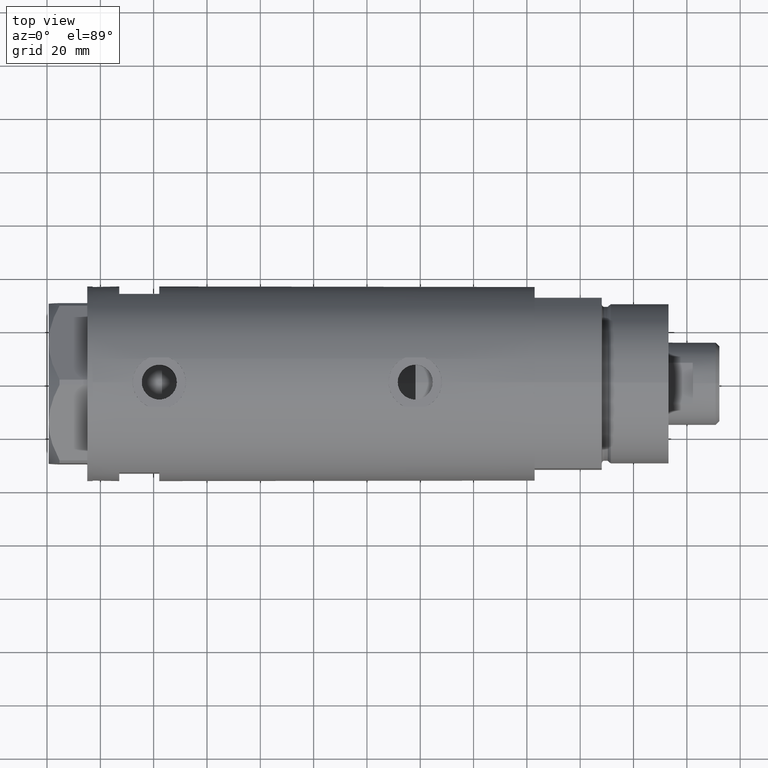
[diagram: clean part render]
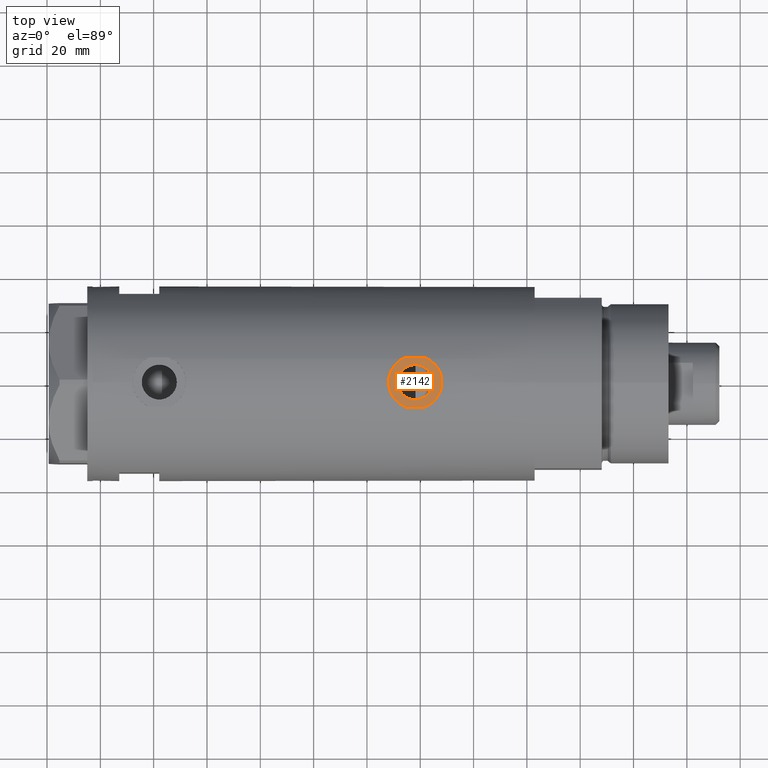
[diagram: same view with one face highlighted and labeled with its STEP entity id]
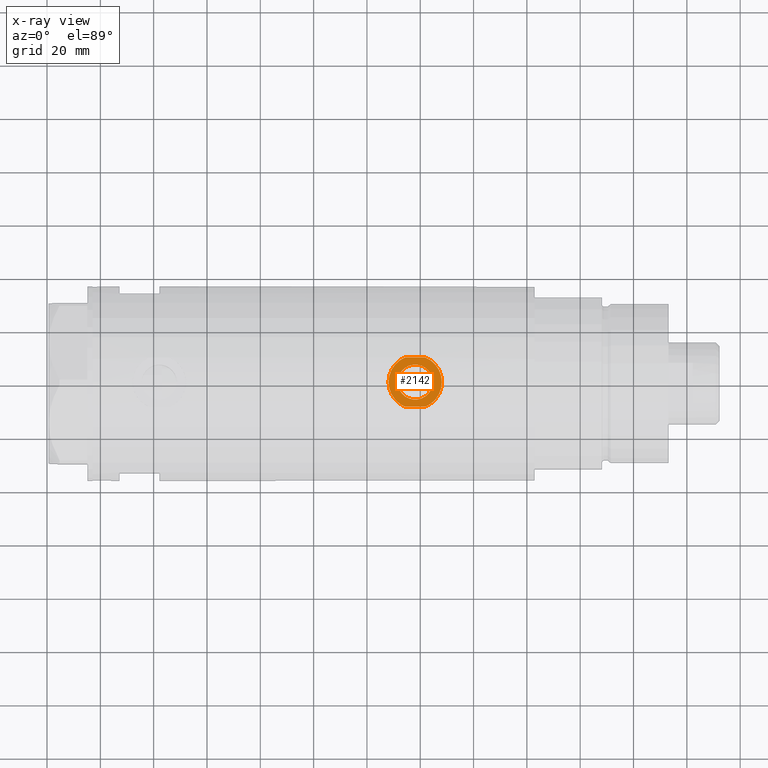
[diagram: x-ray of the same camera — body ghosted, the highlighted face saturated]
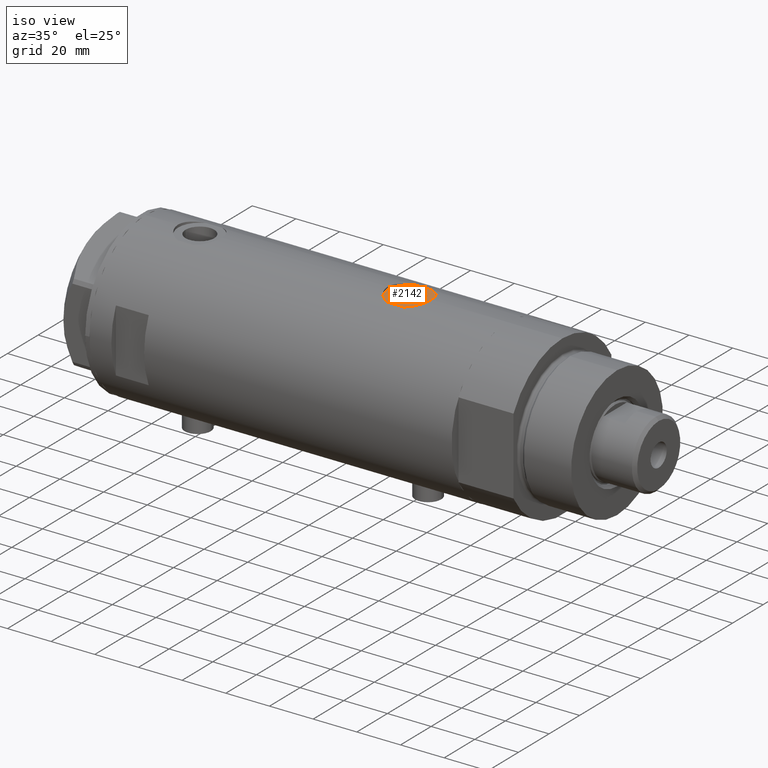
[diagram: same view with one face highlighted and labeled with its STEP entity id]
A machine part, top view. The second image highlights one B-rep face of the part: STEP entity #2142.
The next image is the same camera in x-ray: the body ghosted, the highlighted face saturated — about 0% of this face is hidden behind the body in this view.
A second angle (iso view) of the same face is appended — the face is thin or edge-on in the first view.
In plain terms, the highlighted planar face has unit normal (0, 0, 1).
Its self-contained STEP definition (entity closure, byte-faithful):
#247 = CARTESIAN_POINT ( 'NONE',  ( 35.29999999999999716, -9.282241108697837362, -82.90000000000000568 ) ) ;
#319 = CARTESIAN_POINT ( 'NONE',  ( 35.29999999999999716, -9.282241108697837362, -34.37978495245235422 ) ) ;
#354 = DIRECTION ( 'NONE',  ( 0.000000000000000000, 0.000000000000000000, -1.000000000000000000 ) ) ;
#530 = ORIENTED_EDGE ( 'NONE', *, *, #2272, .F. ) ;
#642 = CIRCLE ( 'NONE', #3584, 10.00000000000000178 ) ;
#651 = AXIS2_PLACEMENT_3D ( 'NONE', #4605, #1009, #2574 ) ;
#714 = EDGE_CURVE ( 'NONE', #3005, #1894, #3304, .T. ) ;
#737 = AXIS2_PLACEMENT_3D ( 'NONE', #3047, #2666, #2267 ) ;
#798 = EDGE_CURVE ( 'NONE', #1988, #3799, #3919, .T. ) ;
#827 = EDGE_CURVE ( 'NONE', #1988, #1529, #642, .T. ) ;
#898 = VERTEX_POINT ( 'NONE', #4773 ) ;
#950 = CIRCLE ( 'NONE', #1580, 6.580000000000002736 ) ;
#955 = ORIENTED_EDGE ( 'NONE', *, *, #798, .F. ) ;
#1009 = DIRECTION ( 'NONE',  ( 1.000000000000000000, 0.000000000000000000, 0.000000000000000000 ) ) ;
#1039 = FACE_OUTER_BOUND ( 'NONE', #4633, .T. ) ;
#1082 = DIRECTION ( 'NONE',  ( 1.000000000000000000, 0.000000000000000000, 0.000000000000000000 ) ) ;
#1118 = CARTESIAN_POINT ( 'NONE',  ( 35.29999999999999716, 0.000000000000000000, -38.10000000000000142 ) ) ;
#1222 = ORIENTED_EDGE ( 'NONE', *, *, #3120, .T. ) ;
#1237 = DIRECTION ( 'NONE',  ( 1.000000000000000000, 0.000000000000000000, 0.000000000000000000 ) ) ;
#1462 = DIRECTION ( 'NONE',  ( 0.000000000000000000, 0.000000000000000000, -1.000000000000000000 ) ) ;
#1483 = AXIS2_PLACEMENT_3D ( 'NONE', #3860, #2031, #1687 ) ;
#1529 = VERTEX_POINT ( 'NONE', #4240 ) ;
#1580 = AXIS2_PLACEMENT_3D ( 'NONE', #1623, #1237, #4152 ) ;
#1623 = CARTESIAN_POINT ( 'NONE',  ( 35.29999999999999716, 0.000000000000000000, -38.10000000000000142 ) ) ;
#1643 = VECTOR ( 'NONE', #4477, 1000.000000000000000 ) ;
#1687 = DIRECTION ( 'NONE',  ( 0.000000000000000000, 0.000000000000000000, -1.000000000000000000 ) ) ;
#1693 = PLANE ( 'NONE',  #651 ) ;
#1894 = VERTEX_POINT ( 'NONE', #4021 ) ;
#1988 = VERTEX_POINT ( 'NONE', #4482 ) ;
#2031 = DIRECTION ( 'NONE',  ( 1.000000000000000000, 0.000000000000000000, 0.000000000000000000 ) ) ;
#2142 = ADVANCED_FACE ( 'NONE', ( #4660, #1039 ), #1693, .T. ) ;
#2196 = CIRCLE ( 'NONE', #1483, 6.580000000000002736 ) ;
#2243 = DIRECTION ( 'NONE',  ( 1.000000000000000000, 0.000000000000000000, 0.000000000000000000 ) ) ;
#2267 = DIRECTION ( 'NONE',  ( 0.000000000000000000, 0.000000000000000000, -1.000000000000000000 ) ) ;
#2272 = EDGE_CURVE ( 'NONE', #898, #2786, #2196, .T. ) ;
#2284 = CARTESIAN_POINT ( 'NONE',  ( 35.29999999999999716, 9.282241108697837362, -82.90000000000000568 ) ) ;
#2569 = ORIENTED_EDGE ( 'NONE', *, *, #827, .T. ) ;
#2574 = DIRECTION ( 'NONE',  ( 0.000000000000000000, 0.000000000000000000, -1.000000000000000000 ) ) ;
#2653 = CARTESIAN_POINT ( 'NONE',  ( 35.29999999999999716, 0.000000000000000000, -38.10000000000000142 ) ) ;
#2666 = DIRECTION ( 'NONE',  ( 1.000000000000000000, 0.000000000000000000, 0.000000000000000000 ) ) ;
#2673 = AXIS2_PLACEMENT_3D ( 'NONE', #1118, #2243, #354 ) ;
#2786 = VERTEX_POINT ( 'NONE', #4636 ) ;
#3005 = VERTEX_POINT ( 'NONE', #4247 ) ;
#3047 = CARTESIAN_POINT ( 'NONE',  ( 35.29999999999999716, 0.000000000000000000, -38.10000000000000142 ) ) ;
#3120 = EDGE_CURVE ( 'NONE', #3005, #3799, #4486, .T. ) ;
#3304 = LINE ( 'NONE', #2284, #1643 ) ;
#3584 = AXIS2_PLACEMENT_3D ( 'NONE', #2653, #1082, #1462 ) ;
#3631 = DIRECTION ( 'NONE',  ( 0.000000000000000000, 0.000000000000000000, 1.000000000000000000 ) ) ;
#3668 = EDGE_LOOP ( 'NONE', ( #4418, #530 ) ) ;
#3799 = VERTEX_POINT ( 'NONE', #319 ) ;
#3860 = CARTESIAN_POINT ( 'NONE',  ( 35.29999999999999716, 0.000000000000000000, -38.10000000000000142 ) ) ;
#3898 = CIRCLE ( 'NONE', #737, 10.00000000000000178 ) ;
#3919 = LINE ( 'NONE', #247, #4174 ) ;
#4021 = CARTESIAN_POINT ( 'NONE',  ( 35.29999999999999716, 9.282241108697837362, -41.82021504754764862 ) ) ;
#4152 = DIRECTION ( 'NONE',  ( 0.000000000000000000, 0.000000000000000000, -1.000000000000000000 ) ) ;
#4174 = VECTOR ( 'NONE', #3631, 1000.000000000000000 ) ;
#4238 = ORIENTED_EDGE ( 'NONE', *, *, #4298, .T. ) ;
#4240 = CARTESIAN_POINT ( 'NONE',  ( 35.29999999999999716, 0.000000000000000000, -48.10000000000000142 ) ) ;
#4247 = CARTESIAN_POINT ( 'NONE',  ( 35.29999999999999716, 9.282241108697837362, -34.37978495245235422 ) ) ;
#4298 = EDGE_CURVE ( 'NONE', #1529, #1894, #3898, .T. ) ;
#4388 = EDGE_CURVE ( 'NONE', #2786, #898, #950, .T. ) ;
#4418 = ORIENTED_EDGE ( 'NONE', *, *, #4388, .F. ) ;
#4477 = DIRECTION ( 'NONE',  ( -0.000000000000000000, -0.000000000000000000, -1.000000000000000000 ) ) ;
#4482 = CARTESIAN_POINT ( 'NONE',  ( 35.29999999999999716, -9.282241108697837362, -41.82021504754764862 ) ) ;
#4486 = CIRCLE ( 'NONE', #2673, 10.00000000000000178 ) ;
#4590 = ORIENTED_EDGE ( 'NONE', *, *, #714, .F. ) ;
#4605 = CARTESIAN_POINT ( 'NONE',  ( 35.29999999999999716, 0.000000000000000000, -38.10000000000000142 ) ) ;
#4633 = EDGE_LOOP ( 'NONE', ( #1222, #955, #2569, #4238, #4590 ) ) ;
#4636 = CARTESIAN_POINT ( 'NONE',  ( 35.29999999999999716, 0.000000000000000000, -44.68000000000000682 ) ) ;
#4660 = FACE_BOUND ( 'NONE', #3668, .T. ) ;
#4773 = CARTESIAN_POINT ( 'NONE',  ( 35.29999999999999716, 8.058175938389587461E-16, -31.51999999999999957 ) ) ;